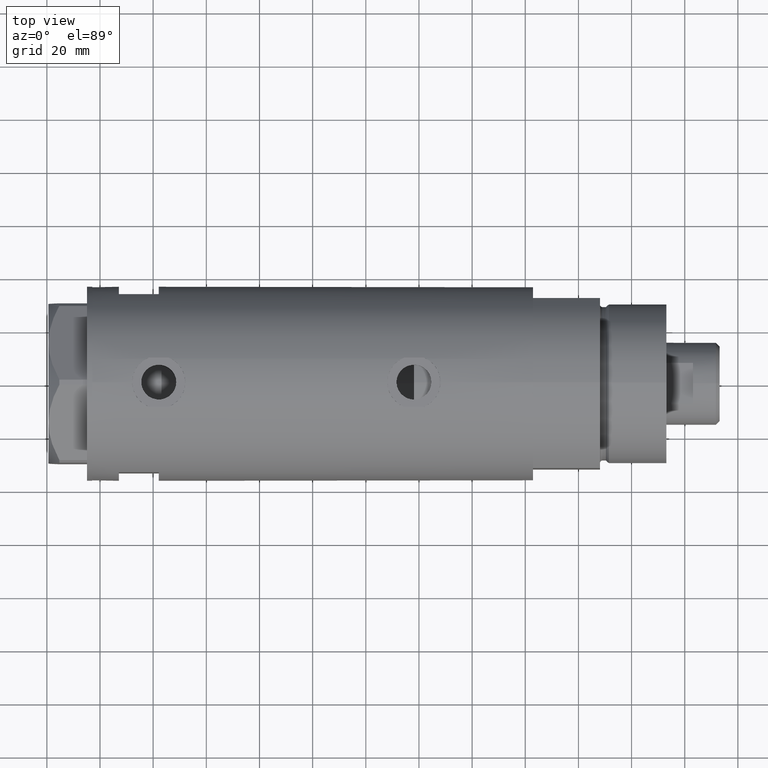
[diagram: clean part render]
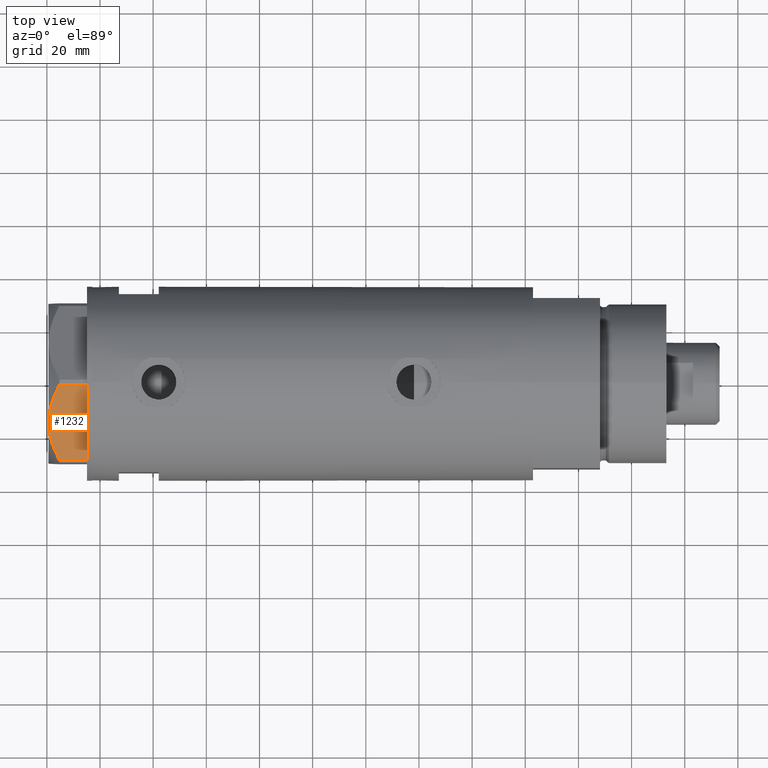
[diagram: same view with one face highlighted and labeled with its STEP entity id]
A machine part, top view. The second image highlights one B-rep face of the part: STEP entity #1232.
In plain terms, the highlighted planar face has unit normal (-0, 0.5, -0.866).
Its self-contained STEP definition (entity closure, byte-faithful):
#187 = CARTESIAN_POINT ( 'NONE',  ( -29.03005154776157326, -17.88050807568868805, 10.40518423703595374 ) ) ;
#415 = CARTESIAN_POINT ( 'NONE',  ( -29.03005154776157326, -17.88050807568868805, 10.40518423703595374 ) ) ;
#510 = CARTESIAN_POINT ( 'NONE',  ( -26.82462797925472842, -19.15380996664326219, 11.61522964162834626 ) ) ;
#528 = CARTESIAN_POINT ( 'NONE',  ( -15.61187731150016411, -25.62749458302751648, 14.50000000000000355 ) ) ;
#630 = EDGE_CURVE ( 'NONE', #4395, #3513, #767, .T. ) ;
#674 = DIRECTION ( 'NONE',  ( -0.000000000000000000, 0.000000000000000000, -1.000000000000000000 ) ) ;
#767 = B_SPLINE_CURVE_WITH_KNOTS ( 'NONE', 3,
 ( #3994, #4312, #1910, #1885, #2241, #892, #3618, #3269, #1238, #2602 ),
 .UNSPECIFIED., .F., .F.,
 ( 4, 2, 2, 2, 4 ),
 ( 0.01795453117522812295, 0.02625795893839792672, 0.02833381587919037853, 0.03040967281998283034, 0.03456138670156772702 ),
 .UNSPECIFIED. ) ;
#892 = CARTESIAN_POINT ( 'NONE',  ( -5.477433827011700451, -31.47861825688396564, 12.55468001512206300 ) ) ;
#915 = DIRECTION ( 'NONE',  ( -0.8660254037844387076, 0.4999999999999997780, 0.000000000000000000 ) ) ;
#984 = CARTESIAN_POINT ( 'NONE',  ( -30.00000000000000000, -17.32050807568877460, 14.50000000000000000 ) ) ;
#1018 = LINE ( 'NONE', #3784, #1493 ) ;
#1043 = CARTESIAN_POINT ( 'NONE',  ( -0.9699484522385850571, -34.08101615137752560, 14.50000000000000000 ) ) ;
#1059 = EDGE_CURVE ( 'NONE', #3413, #4395, #3215, .T. ) ;
#1209 = VECTOR ( 'NONE', #1368, 1000.000000000000000 ) ;
#1224 = ORIENTED_EDGE ( 'NONE', *, *, #630, .F. ) ;
#1232 = ADVANCED_FACE ( 'NONE', ( #1256 ), #3704, .F. ) ;
#1238 = CARTESIAN_POINT ( 'NONE',  ( -2.073315687465953960, -33.44398678110400169, 11.01056656432686509 ) ) ;
#1256 = FACE_OUTER_BOUND ( 'NONE', #3433, .T. ) ;
#1368 = DIRECTION ( 'NONE',  ( 0.000000000000000000, 0.000000000000000000, 1.000000000000000000 ) ) ;
#1415 = VERTEX_POINT ( 'NONE', #4303 ) ;
#1460 = CARTESIAN_POINT ( 'NONE',  ( -0.9699484522385886098, -34.08101615137752560, 0.000000000000000000 ) ) ;
#1493 = VECTOR ( 'NONE', #674, 1000.000000000000000 ) ;
#1499 = CARTESIAN_POINT ( 'NONE',  ( -0.9699484522385841689, -34.08101615137752560, 10.40518423703605322 ) ) ;
#1563 = ORIENTED_EDGE ( 'NONE', *, *, #2564, .T. ) ;
#1745 = LINE ( 'NONE', #1043, #1209 ) ;
#1762 = ORIENTED_EDGE ( 'NONE', *, *, #1059, .F. ) ;
#1842 = LINE ( 'NONE', #2948, #4159 ) ;
#1865 = CARTESIAN_POINT ( 'NONE',  ( -16.22616138060132940, -25.27283751037305137, 14.47500996539161910 ) ) ;
#1885 = CARTESIAN_POINT ( 'NONE',  ( -7.227334865371702222, -30.46831242133162476, 13.19311392138147276 ) ) ;
#1910 = CARTESIAN_POINT ( 'NONE',  ( -10.17780078270465616, -28.76486012972462447, 14.10092492974135148 ) ) ;
#1936 = CARTESIAN_POINT ( 'NONE',  ( -24.56959650245797988, -20.45575299680293568, 12.63511531451932512 ) ) ;
#2241 = CARTESIAN_POINT ( 'NONE',  ( -6.639151835533460222, -30.80790005194150183, 12.99122625442232604 ) ) ;
#2279 = CARTESIAN_POINT ( 'NONE',  ( -18.07068105770097688, -24.20790357827401351, 14.29910535634586921 ) ) ;
#2483 = VERTEX_POINT ( 'NONE', #1460 ) ;
#2564 = EDGE_CURVE ( 'NONE', #1415, #2483, #1842, .T. ) ;
#2602 = CARTESIAN_POINT ( 'NONE',  ( -0.9699484522385841689, -34.08101615137752560, 10.40518423703605322 ) ) ;
#2702 = ORIENTED_EDGE ( 'NONE', *, *, #4478, .T. ) ;
#2948 = CARTESIAN_POINT ( 'NONE',  ( -30.00000000000000000, -17.32050807568877460, 0.000000000000000000 ) ) ;
#3026 = DIRECTION ( 'NONE',  ( 0.4999999999999998335, 0.8660254037844388186, -0.000000000000000000 ) ) ;
#3030 = ORIENTED_EDGE ( 'NONE', *, *, #3466, .T. ) ;
#3215 = B_SPLINE_CURVE_WITH_KNOTS ( 'NONE', 3,
 ( #187, #510, #1936, #3569, #3249, #2279, #3632, #1865, #528, #4309 ),
 .UNSPECIFIED., .F., .F.,
 ( 4, 2, 2, 2, 4 ),
 ( 0.001230196178133391958, 0.009592363676680756152, 0.01377344742595443955, 0.01586398930059127951, 0.01795453117522812295 ),
 .UNSPECIFIED. ) ;
#3249 = CARTESIAN_POINT ( 'NONE',  ( -19.88494945387373747, -23.16043523136143278, 14.00566141361761119 ) ) ;
#3269 = CARTESIAN_POINT ( 'NONE',  ( -3.192653970405496811, -32.79773652213460622, 11.56973717813738745 ) ) ;
#3413 = VERTEX_POINT ( 'NONE', #415 ) ;
#3433 = EDGE_LOOP ( 'NONE', ( #1762, #3030, #1563, #2702, #1224 ) ) ;
#3466 = EDGE_CURVE ( 'NONE', #3413, #1415, #1018, .T. ) ;
#3513 = VERTEX_POINT ( 'NONE', #1499 ) ;
#3569 = CARTESIAN_POINT ( 'NONE',  ( -21.07077273125423744, -22.47579984295447630, 13.71922620632299150 ) ) ;
#3618 = CARTESIAN_POINT ( 'NONE',  ( -4.902385341342997194, -31.81062265488187535, 12.31959434659020758 ) ) ;
#3632 = CARTESIAN_POINT ( 'NONE',  ( -17.45962150578836258, -24.56069897506165489, 14.37423503257922164 ) ) ;
#3704 = PLANE ( 'NONE',  #4287 ) ;
#3784 = CARTESIAN_POINT ( 'NONE',  ( -29.03005154776141339, -17.88050807568878042, 14.50000000000000000 ) ) ;
#3990 = DIRECTION ( 'NONE',  ( 0.8660254037844387076, -0.4999999999999997780, 0.000000000000000000 ) ) ;
#3994 = CARTESIAN_POINT ( 'NONE',  ( -14.99999999999999645, -25.98076211353316367, 14.50000000000000000 ) ) ;
#4013 = CARTESIAN_POINT ( 'NONE',  ( -14.99999999999999645, -25.98076211353316367, 14.50000000000000000 ) ) ;
#4159 = VECTOR ( 'NONE', #3990, 1000.000000000000227 ) ;
#4287 = AXIS2_PLACEMENT_3D ( 'NONE', #984, #3026, #915 ) ;
#4303 = CARTESIAN_POINT ( 'NONE',  ( -29.03005154776141339, -17.88050807568878042, 0.000000000000000000 ) ) ;
#4309 = CARTESIAN_POINT ( 'NONE',  ( -14.99999999999999645, -25.98076211353316367, 14.50000000000000000 ) ) ;
#4312 = CARTESIAN_POINT ( 'NONE',  ( -12.56968319190124639, -27.38390617690504669, 14.50000000000000711 ) ) ;
#4395 = VERTEX_POINT ( 'NONE', #4013 ) ;
#4478 = EDGE_CURVE ( 'NONE', #2483, #3513, #1745, .T. ) ;